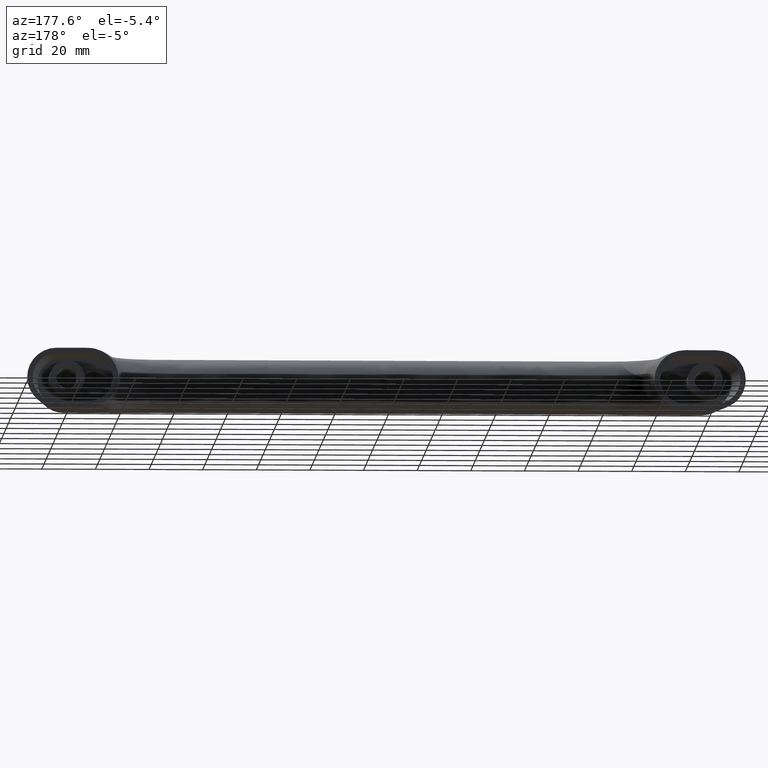
[diagram: clean part render]
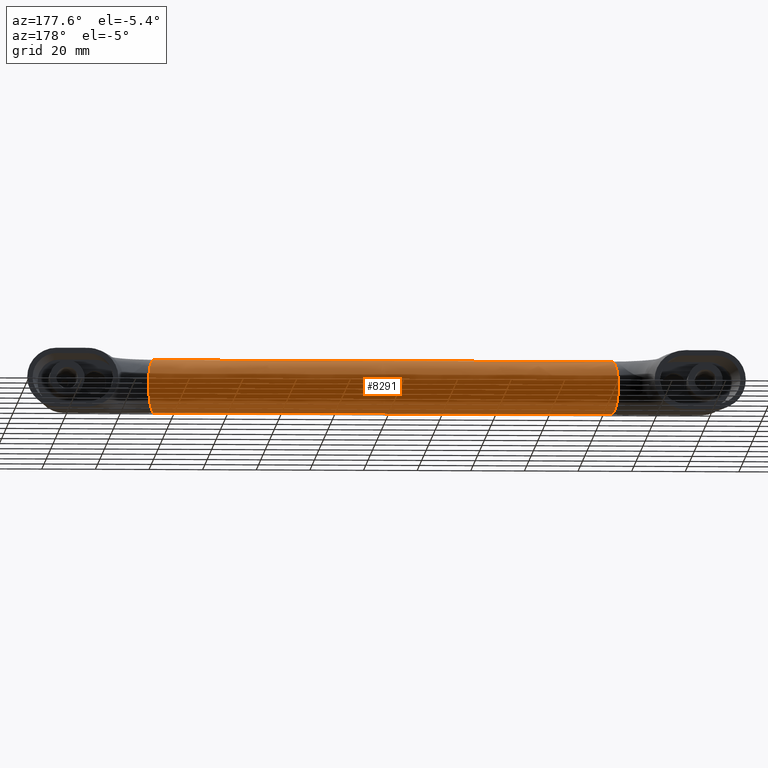
[diagram: same view with one face highlighted and labeled with its STEP entity id]
A machine part, auxiliary view. The second image highlights one B-rep face of the part: STEP entity #8291.
In plain terms, the highlighted face is a freeform B-spline surface patch.
Its self-contained STEP definition (entity closure, byte-faithful):
#453=CARTESIAN_POINT('',(-0.042629398018013,1.999547296230428,-17.798051736946970));
#454=VERTEX_POINT('',#453);
#460=CARTESIAN_POINT('',(1.999999835790052,0.000810456516758,-17.999999967158011));
#461=VERTEX_POINT('',#460);
#462=CARTESIAN_POINT('',(-0.042629398018013,1.999547296230428,-17.798051736946970));
#463=CARTESIAN_POINT('',(-0.028825541929274,1.999839635088222,-17.797991661910579));
#464=CARTESIAN_POINT('',(-0.015012582435126,1.999989765326154,-17.797960723001381));
#465=CARTESIAN_POINT('',(0.064208554135875,2.000036957347086,-17.797951096662779));
#466=CARTESIAN_POINT('',(0.129812442860735,1.996876539158395,-17.798597925378630));
#467=CARTESIAN_POINT('',(0.261443504991600,1.983939203571930,-17.801225572907569));
#468=CARTESIAN_POINT('',(0.326699762504437,1.974220188665382,-17.803194321935710));
#469=CARTESIAN_POINT('',(0.519269565542917,1.935843401062342,-17.810870789580189));
#470=CARTESIAN_POINT('',(0.644100662098178,1.897988497227027,-17.818362759310379));
#471=CARTESIAN_POINT('',(0.826012723825602,1.822637181665108,-17.832529806131170));
#472=CARTESIAN_POINT('',(0.885928635776734,1.794273153060377,-17.837762209572158));
#473=CARTESIAN_POINT('',(1.001425153368370,1.732464649579163,-17.848834858980741));
#474=CARTESIAN_POINT('',(1.113204673953867,1.665365372651702,-17.860556574694961));
#475=CARTESIAN_POINT('',(1.217730502669431,1.587886780648216,-17.873214532585660));
#476=CARTESIAN_POINT('',(1.318611440051707,1.505163201901110,-17.886163753410990));
#477=CARTESIAN_POINT('',(1.367418739418025,1.460986812478412,-17.892811410519929));
#478=CARTESIAN_POINT('',(1.506859889171200,1.321607765410612,-17.912727236141890));
#479=CARTESIAN_POINT('',(1.589371792832845,1.220996140687447,-17.925774812492708));
#480=CARTESIAN_POINT('',(1.697991295629131,1.058800447118545,-17.943937859034278));
#481=CARTESIAN_POINT('',(1.731654051470432,1.002841659702229,-17.949758390599129));
#482=CARTESIAN_POINT('',(1.778224254005538,0.915967916920532,-17.958004219790311));
#483=CARTESIAN_POINT('',(1.793126876397810,0.886441093596144,-17.960678283061888));
#484=CARTESIAN_POINT('',(1.821314662036833,0.826979334328783,-17.965791236234018));
#485=CARTESIAN_POINT('',(1.834626139104836,0.797004750511605,-17.968234604125829));
#486=CARTESIAN_POINT('',(1.897339030012980,0.645931912113541,-17.979852939834029));
#487=CARTESIAN_POINT('',(1.935318280984245,0.521267676603766,-17.987232845643099));
#488=CARTESIAN_POINT('',(1.967490442894701,0.360631144163935,-17.993546858964141));
#489=CARTESIAN_POINT('',(1.973152810301690,0.328261407782874,-17.994664034615621));
#490=CARTESIAN_POINT('',(1.982903011871320,0.263027075596773,-17.996593495238081));
#491=CARTESIAN_POINT('',(1.986993418471062,0.230096991109763,-17.997406297370841));
#492=CARTESIAN_POINT('',(1.996752109407330,0.131647382352328,-17.999348895485479));
#493=CARTESIAN_POINT('',(1.999973355393841,0.066158673439812,-17.999994670966800));
#494=CARTESIAN_POINT('',(1.999999835790052,0.000810456516758,-17.999999967158011));
#495=B_SPLINE_CURVE_WITH_KNOTS('',3,(#462,#463,#464,#465,#466,#467,#468,#469,#470,#471,#472,#473,#474,#475,#476,#477,#478,#479,#480,#481,#482,#483,#484,#485,#486,#487,#488,#489,#490,#491,#492,#493,#494),.UNSPECIFIED.,.F.,.U.,(4,2,2,2,2,2,1,2,2,2,2,2,2,2,2,2,4),(0.246697668847944,0.250000000000000,0.265624999999999,0.281249999999999,0.312499999999999,0.328124999999999,0.343749999999999,0.359374999999999,0.374999999999999,0.406250000000000,0.421875000000000,0.429687500000000,0.437500000000000,0.468750000000000,0.476562500000000,0.484375000000000,0.500000000000000),.UNSPECIFIED.);
#496=EDGE_CURVE('',#454,#461,#495,.T.);
#498=CARTESIAN_POINT('',(0.156918195181319,-1.993834714876031,-17.799215442359451));
#499=VERTEX_POINT('',#498);
#500=CARTESIAN_POINT('',(1.999999835790052,0.000810456516761,-17.999999967158011));
#501=CARTESIAN_POINT('',(2.000052797704127,-0.129886030293391,-18.000010559539980));
#502=CARTESIAN_POINT('',(1.987419448282569,-0.260024470749905,-17.997459651921609));
#503=CARTESIAN_POINT('',(1.948822813357405,-0.454369716572165,-17.989882442499479));
#504=CARTESIAN_POINT('',(1.932748452732108,-0.518425043121747,-17.986749648136591));
#505=CARTESIAN_POINT('',(1.894731352580383,-0.643641366308172,-17.979461851796870));
#506=CARTESIAN_POINT('',(1.850753568900933,-0.766439848059535,-17.971133763185989));
#507=CARTESIAN_POINT('',(1.794992770591630,-0.884475298828708,-17.960977636135549));
#508=CARTESIAN_POINT('',(1.733234559291510,-1.000096776913073,-17.950034093340530));
#509=CARTESIAN_POINT('',(1.699183542997264,-1.056912101132448,-17.944140876571190));
#510=CARTESIAN_POINT('',(1.590022912517966,-1.220237168307432,-17.925876540816841));
#511=CARTESIAN_POINT('',(1.507540982392015,-1.320725306437610,-17.912838664116439));
#512=CARTESIAN_POINT('',(1.369387431795273,-1.459118517737746,-17.893085695583629));
#513=CARTESIAN_POINT('',(1.320771955711196,-1.503293310138404,-17.886450194415541));
#514=CARTESIAN_POINT('',(1.219109736746892,-1.586852477412120,-17.873382775821920));
#515=CARTESIAN_POINT('',(1.166614023509236,-1.625808211471116,-17.867020676853851));
#516=CARTESIAN_POINT('',(1.004266704247538,-1.734477116620760,-17.848704820620458));
#517=CARTESIAN_POINT('',(0.889602025504011,-1.796072157324994,-17.837518118251271));
#518=CARTESIAN_POINT('',(0.707619300128273,-1.871788360261588,-17.823292106758259));
#519=CARTESIAN_POINT('',(0.645204909791787,-1.894203337329383,-17.818980189170610));
#520=CARTESIAN_POINT('',(0.519805285801920,-1.932381464313292,-17.811538111573171));
#521=CARTESIAN_POINT('',(0.393148059321880,-1.964223485076534,-17.805218904090399));
#522=CARTESIAN_POINT('',(0.264005888974500,-1.983581269041526,-17.801298359099860));
#523=CARTESIAN_POINT('',(0.184870765617100,-1.991486595963425,-17.799693013315181));
#524=CARTESIAN_POINT('',(0.170909033043414,-1.992733643470794,-17.799439482691952));
#525=CARTESIAN_POINT('',(0.156918195181319,-1.993834714876031,-17.799215442359451));
#526=B_SPLINE_CURVE_WITH_KNOTS('',3,(#500,#501,#502,#503,#504,#505,#506,#507,#508,#509,#510,#511,#512,#513,#514,#515,#516,#517,#518,#519,#520,#521,#522,#523,#524,#525),.UNSPECIFIED.,.F.,.U.,(4,2,2,1,2,2,2,2,2,2,2,1,2,4),(0.500000000000000,0.531250000000000,0.546875000000000,0.562500000000000,0.578125000000000,0.593750000000000,0.625000000000000,0.640625000000000,0.656250000000000,0.687500000000000,0.703125000000000,0.718750000000000,0.734375000000000,0.737713856169480),.UNSPECIFIED.);
#527=EDGE_CURVE('',#461,#499,#526,.T.);
#605=CARTESIAN_POINT('',(-2.0,8.809143E-016,-18.0));
#606=VERTEX_POINT('',#605);
#607=CARTESIAN_POINT('',(0.156918195181319,-1.993834714876031,-17.799215442359451));
#608=CARTESIAN_POINT('',(0.138172255493605,-1.995310121853097,-17.798915256729490));
#609=CARTESIAN_POINT('',(0.119374067204725,-1.996523501456271,-17.798668013843780));
#610=CARTESIAN_POINT('',(0.067602854654982,-1.999128895255984,-17.798136890190872));
#611=CARTESIAN_POINT('',(0.034428399616408,-1.999976196628867,-17.797963829974250));
#612=CARTESIAN_POINT('',(-0.130655006506224,-2.000092722298204,-17.797940044277759));
#613=CARTESIAN_POINT('',(-0.260742864505264,-1.987231187695684,-17.800590988207450));
#614=CARTESIAN_POINT('',(-0.453006168365799,-1.949116227962751,-17.808216647676730));
#615=CARTESIAN_POINT('',(-0.516612484831615,-1.933251176925896,-17.811366833995859));
#616=CARTESIAN_POINT('',(-0.642837746751302,-1.895021953413988,-17.818822284795569));
#617=CARTESIAN_POINT('',(-0.705038489457064,-1.872751111468732,-17.823108049745130));
#618=CARTESIAN_POINT('',(-0.886275598014861,-1.797670590752508,-17.837223916178989));
#619=CARTESIAN_POINT('',(-1.001116221717805,-1.736346875192909,-17.848376899331491));
#620=CARTESIAN_POINT('',(-1.164446729784096,-1.627374374134546,-17.866762876038919));
#621=CARTESIAN_POINT('',(-1.217622409910169,-1.587980808102496,-17.873200252054460));
#622=CARTESIAN_POINT('',(-1.318881617944794,-1.504938091040500,-17.886198845168220));
#623=CARTESIAN_POINT('',(-1.367164391158273,-1.461193397422331,-17.892778483465261));
#624=CARTESIAN_POINT('',(-1.505146751731084,-1.323416685794961,-17.912475843405382));
#625=CARTESIAN_POINT('',(-1.588116948532512,-1.222809584556305,-17.925567040224202));
#626=CARTESIAN_POINT('',(-1.734880594674615,-1.003776889811892,-17.950104336415141));
#627=CARTESIAN_POINT('',(-1.796381660011250,-0.888809706553845,-17.961152903723331));
#628=CARTESIAN_POINT('',(-1.871469167103846,-0.708410613487627,-17.975058489510381));
#629=CARTESIAN_POINT('',(-1.893616060417355,-0.646943191407613,-17.979249824854801));
#630=CARTESIAN_POINT('',(-1.931995047681247,-0.521260407967403,-17.986603534077979));
#631=CARTESIAN_POINT('',(-1.948231883961817,-0.456863449602405,-17.989767124958519));
#632=CARTESIAN_POINT('',(-1.986963666743435,-0.263252973608180,-17.997368831939031));
#633=CARTESIAN_POINT('',(-2.0,-0.132487305799177,-18.0));
#634=CARTESIAN_POINT('',(-2.0,6.911789E-016,-18.0));
#635=B_SPLINE_CURVE_WITH_KNOTS('',3,(#607,#608,#609,#610,#611,#612,#613,#614,#615,#616,#617,#618,#619,#620,#621,#622,#623,#624,#625,#626,#627,#628,#629,#630,#631,#632,#633,#634),.UNSPECIFIED.,.F.,.U.,(4,2,2,2,2,2,2,2,2,2,2,2,2,4),(0.737713856169481,0.742187500000000,0.750000000000000,0.781250000000000,0.796875000000000,0.812500000000000,0.843750000000000,0.859375000000000,0.875000000000000,0.906250000000000,0.937500000000000,0.953125000000000,0.968750000000000,1.0),.UNSPECIFIED.);
#636=EDGE_CURVE('',#499,#606,#635,.T.);
#638=CARTESIAN_POINT('',(-2.0,8.809143E-016,-18.0));
#639=CARTESIAN_POINT('',(-1.999999998814197,0.132487249805977,-17.999999999999531));
#640=CARTESIAN_POINT('',(-1.986965978300332,0.262694814064675,-17.997370075085239));
#641=CARTESIAN_POINT('',(-1.948709979892788,0.454741477055386,-17.989860572386529));
#642=CARTESIAN_POINT('',(-1.932817023572707,0.518208950786004,-17.986762746585288));
#643=CARTESIAN_POINT('',(-1.894611263642852,0.644026526087120,-17.979438879788901));
#644=CARTESIAN_POINT('',(-1.872214889762239,0.706472800650003,-17.975198190643869));
#645=CARTESIAN_POINT('',(-1.796835087138870,0.888005949243169,-17.961233741385321));
#646=CARTESIAN_POINT('',(-1.735380388576211,1.002750270159688,-17.950197326395969));
#647=CARTESIAN_POINT('',(-1.644673842963570,1.138469307506618,-17.935020493181870));
#648=CARTESIAN_POINT('',(-1.625831680561514,1.165224027740090,-17.931916044604691));
#649=CARTESIAN_POINT('',(-1.586722124126226,1.217944343852811,-17.925588887530541));
#650=CARTESIAN_POINT('',(-1.566401113536440,1.243971128395792,-17.922358018084392));
#651=CARTESIAN_POINT('',(-1.503874096686876,1.320103909933178,-17.912615291742679));
#652=CARTESIAN_POINT('',(-1.460002602004659,1.368437513087827,-17.906035263676561));
#653=CARTESIAN_POINT('',(-1.321996831186397,1.506401629581129,-17.886323060862271));
#654=CARTESIAN_POINT('',(-1.221534989206417,1.589065021784563,-17.873214535065031));
#655=CARTESIAN_POINT('',(-1.084979297726198,1.680445210674284,-17.857811304683960));
#656=CARTESIAN_POINT('',(-1.057076413090181,1.698135337720620,-17.854776839290039));
#657=CARTESIAN_POINT('',(-1.000767019409801,1.731917820209001,-17.848895909449670));
#658=CARTESIAN_POINT('',(-0.972289739271936,1.748060366841691,-17.846041124704950));
#659=CARTESIAN_POINT('',(-0.885903604523447,1.794278811210112,-17.837760874274949));
#660=CARTESIAN_POINT('',(-0.768181801547586,1.850022875979976,-17.827478190792700));
#661=CARTESIAN_POINT('',(-0.645410260571346,1.894131256575532,-17.818993832546731));
#662=CARTESIAN_POINT('',(-0.520056281814767,1.932311756050382,-17.811551559749450));
#663=CARTESIAN_POINT('',(-0.455707261175745,1.948502319250716,-17.808338567486810));
#664=CARTESIAN_POINT('',(-0.275621797902090,1.984414007075290,-17.801155372952529));
#665=CARTESIAN_POINT('',(-0.159451602634869,1.997073325644877,-17.798560152713971));
#666=CARTESIAN_POINT('',(-0.042629398018013,1.999547296230428,-17.798051736946970));
#667=B_SPLINE_CURVE_WITH_KNOTS('',3,(#638,#639,#640,#641,#642,#643,#644,#645,#646,#647,#648,#649,#650,#651,#652,#653,#654,#655,#656,#657,#658,#659,#660,#661,#662,#663,#664,#665,#666),.UNSPECIFIED.,.F.,.U.,(4,2,2,2,2,2,2,2,2,2,2,1,2,2,4),(0.0,0.031250000000000,0.046875000000000,0.062500000000000,0.093750000000000,0.101562500000000,0.109375000000000,0.125000000000000,0.156250000000000,0.164062500000000,0.171875000000000,0.187500000000000,0.203125000000000,0.218750000000000,0.246697668847944),.UNSPECIFIED.);
#668=EDGE_CURVE('',#606,#454,#667,.T.);
#2379=CARTESIAN_POINT('',(-85.558716949461200,-9.938079899998860,-9.111111111111311));
#2380=VERTEX_POINT('',#2379);
#2475=CARTESIAN_POINT('',(85.558716949461200,-9.938079899998860,-9.111111111111311));
#2476=VERTEX_POINT('',#2475);
#2500=CARTESIAN_POINT('',(85.558716949461200,-9.938079899998860,-9.111111111111311));
#2501=CARTESIAN_POINT('',(-85.558716949461200,-9.938079899998860,-9.111111111111311));
#2502=QUASI_UNIFORM_CURVE('',1,(#2500,#2501),.UNSPECIFIED.,.F.,.U.);
#2503=EDGE_CURVE('',#2476,#2380,#2502,.T.);
#2652=CARTESIAN_POINT('',(-85.558716949461200,9.938079899998870,-9.111111111111311));
#2653=VERTEX_POINT('',#2652);
#2766=CARTESIAN_POINT('',(85.558716949461200,9.938079899998870,-9.111111111111311));
#2767=VERTEX_POINT('',#2766);
#2783=CARTESIAN_POINT('',(-85.558716949461200,9.938079899998870,-9.111111111111311));
#2784=CARTESIAN_POINT('',(85.558716949461200,9.938079899998870,-9.111111111111311));
#2785=QUASI_UNIFORM_CURVE('',1,(#2783,#2784),.UNSPECIFIED.,.F.,.U.);
#2786=EDGE_CURVE('',#2653,#2767,#2785,.T.);
#6198=CARTESIAN_POINT('',(-85.558716949461214,-9.938079899998863,-9.111111111111306));
#6199=CARTESIAN_POINT('',(-87.621609871132492,-8.944271909998964,-18.000000000000011));
#6200=CARTESIAN_POINT('',(-87.621609871132492,-2.449213E-016,-18.0));
#6201=CARTESIAN_POINT('',(-87.621609871132492,8.944271909998967,-18.000000000000011));
#6202=CARTESIAN_POINT('',(-85.558716949461214,9.938079899998867,-9.111111111111304));
#6210=(BOUNDED_CURVE()B_SPLINE_CURVE(2,(#6198,#6199,#6200,#6201,#6202),.UNSPECIFIED.,.F.,.U.)B_SPLINE_CURVE_WITH_KNOTS((3,2,3),(0.0,0.500000000000000,1.0),.UNSPECIFIED.)CURVE()GEOMETRIC_REPRESENTATION_ITEM()RATIONAL_B_SPLINE_CURVE((1.0,0.745355992499930,1.0,0.745355992499930,1.0))REPRESENTATION_ITEM(''));
#6211=EDGE_CURVE('',#2380,#2653,#6210,.T.);
#6329=CARTESIAN_POINT('',(85.558716949461214,9.938079899998867,-9.111111111111301));
#6330=CARTESIAN_POINT('',(87.621609871132492,8.944271909998971,-18.000000000000007));
#6331=CARTESIAN_POINT('',(87.621609871132492,3.428898E-015,-18.0));
#6332=CARTESIAN_POINT('',(87.621609871132492,-8.944271909998964,-18.000000000000007));
#6333=CARTESIAN_POINT('',(85.558716949461214,-9.938079899998863,-9.111111111111306));
#6341=(BOUNDED_CURVE()B_SPLINE_CURVE(2,(#6329,#6330,#6331,#6332,#6333),.UNSPECIFIED.,.F.,.U.)B_SPLINE_CURVE_WITH_KNOTS((3,2,3),(0.0,0.500000000000000,1.0),.UNSPECIFIED.)CURVE()GEOMETRIC_REPRESENTATION_ITEM()RATIONAL_B_SPLINE_CURVE((1.0,0.745355992499930,1.0,0.745355992499930,1.0))REPRESENTATION_ITEM(''));
#6342=EDGE_CURVE('',#2767,#2476,#6341,.T.);
#8261=CARTESIAN_POINT('',(-92.002690364688931,9.974149750650073,-8.718565760110598));
#8262=CARTESIAN_POINT('',(92.112217377027818,9.974149750650073,-8.718565760110598));
#8263=CARTESIAN_POINT('',(-92.002690364688945,9.292256305450760,-18.183680456585577));
#8264=CARTESIAN_POINT('',(92.112217377027818,9.292256305450760,-18.183680456585577));
#8265=CARTESIAN_POINT('',(-92.002690364688931,-0.195574325799025,-17.998087351243150));
#8266=CARTESIAN_POINT('',(92.112217377027818,-0.195574325799025,-17.998087351243150));
#8267=CARTESIAN_POINT('',(-92.002690364688945,-9.683404957048809,-17.812494245900723));
#8268=CARTESIAN_POINT('',(92.112217377027818,-9.683404957048809,-17.812494245900723));
#8269=CARTESIAN_POINT('',(-92.002690364688931,-9.994620889364597,-8.327953164145360));
#8270=CARTESIAN_POINT('',(92.112217377027818,-9.994620889364597,-8.327953164145360));
#8278=(BOUNDED_SURFACE()B_SPLINE_SURFACE(1,2,((#8261,#8263,#8265,#8267,#8269),(#8262,#8264,#8266,#8268,#8270)),.UNSPECIFIED.,.F.,.F.,.U.)B_SPLINE_SURFACE_WITH_KNOTS((2,2),(3,2,3),(0.0,184.114907741716790),(0.0,15.958381838948460,31.916763677896920),.UNSPECIFIED.)GEOMETRIC_REPRESENTATION_ITEM()RATIONAL_B_SPLINE_SURFACE(((1.0,0.725374371012288,1.0,0.725374371012288,1.0),(1.0,0.725374371012288,1.0,0.725374371012288,1.0)))REPRESENTATION_ITEM('')SURFACE());
#8279=ORIENTED_EDGE('',*,*,#6211,.T.);
#8280=ORIENTED_EDGE('',*,*,#2786,.T.);
#8281=ORIENTED_EDGE('',*,*,#6342,.T.);
#8282=ORIENTED_EDGE('',*,*,#2503,.T.);
#8283=EDGE_LOOP('',(#8279,#8280,#8281,#8282));
#8284=FACE_OUTER_BOUND('',#8283,.T.);
#8285=ORIENTED_EDGE('',*,*,#527,.F.);
#8286=ORIENTED_EDGE('',*,*,#496,.F.);
#8287=ORIENTED_EDGE('',*,*,#668,.F.);
#8288=ORIENTED_EDGE('',*,*,#636,.F.);
#8289=EDGE_LOOP('',(#8285,#8286,#8287,#8288));
#8290=FACE_BOUND('',#8289,.T.);
#8291=ADVANCED_FACE('',(#8284,#8290),#8278,.T.);